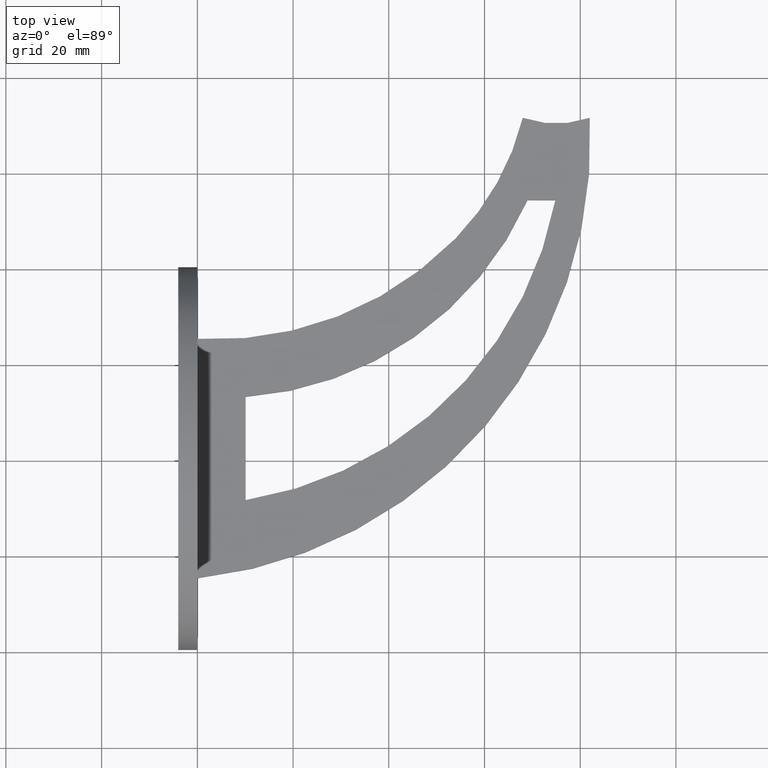
[diagram: clean part render]
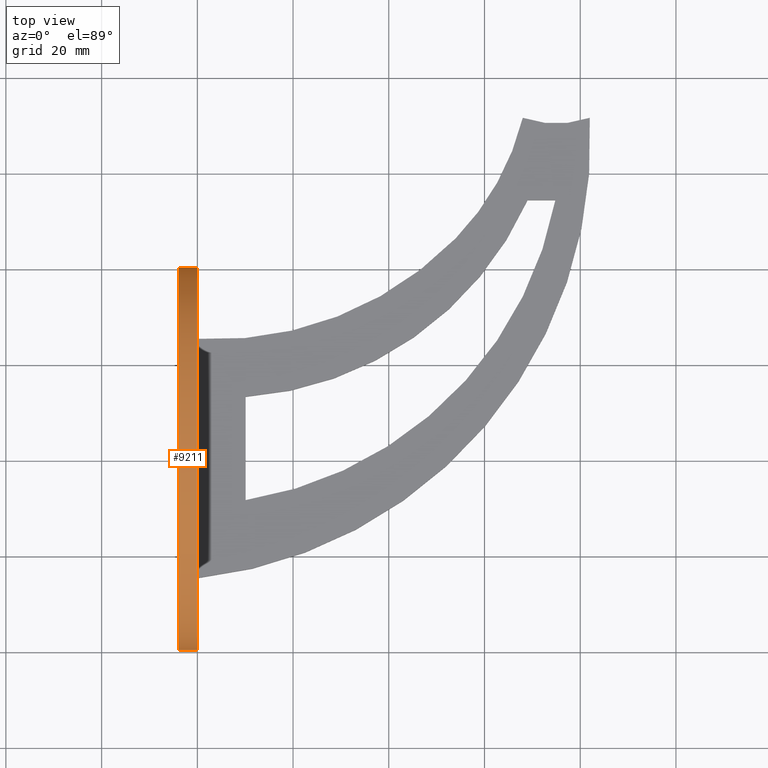
[diagram: same view with one face highlighted and labeled with its STEP entity id]
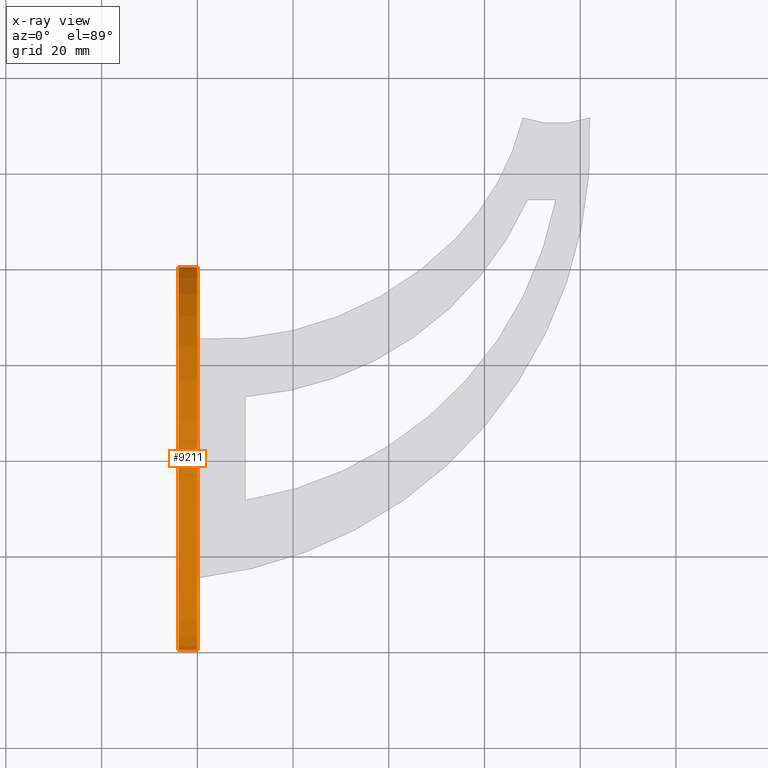
[diagram: x-ray of the same camera — body ghosted, the highlighted face saturated]
A machine part, top view. The second image highlights one B-rep face of the part: STEP entity #9211.
The next image is the same camera in x-ray: the body ghosted, the highlighted face saturated — about 0% of this face is hidden behind the body in this view.
In plain terms, the highlighted face is a freeform B-spline surface patch.
Its self-contained STEP definition (entity closure, byte-faithful):
#258 = ORIENTED_EDGE ( 'NONE', *, *, #6277, .F. ) ;
#262 = CARTESIAN_POINT ( 'NONE',  ( -4.000000000003197442, -39.99999999999973710, -3.673940397442059178E-15 ) ) ;
#508 = FACE_OUTER_BOUND ( 'NONE', #5699, .T. ) ;
#555 = CARTESIAN_POINT ( 'NONE',  ( -3.197312206659752172E-12, -40.00000000000005684, 59.99999999999998579 ) ) ;
#821 = ORIENTED_EDGE ( 'NONE', *, *, #11637, .T. ) ;
#954 = VERTEX_POINT ( 'NONE', #4424 ) ;
#1369 = EDGE_CURVE ( 'NONE', #5265, #11508, #9267, .T. ) ;
#1912 = CARTESIAN_POINT ( 'NONE',  ( -4.000000000003197442, -39.99999999999973710, -3.673940397442059178E-15 ) ) ;
#2052 = VERTEX_POINT ( 'NONE', #9369 ) ;
#2991 =( BOUNDED_CURVE ( )  B_SPLINE_CURVE ( 3, ( #6125, #10563, #9661, #4176 ),
 .UNSPECIFIED., .F., .T. ) 
 B_SPLINE_CURVE_WITH_KNOTS ( ( 4, 4 ),
 ( 3.141592653589793116, 6.283185307179586232 ),
 .UNSPECIFIED. ) 
 CURVE ( )  GEOMETRIC_REPRESENTATION_ITEM ( )  RATIONAL_B_SPLINE_CURVE ( ( 1.000000000000000000, 0.3333333333333333703, 0.3333333333333333703, 1.000000000000000000 ) ) 
 REPRESENTATION_ITEM ( '' )  );
#3131 = CARTESIAN_POINT ( 'NONE',  ( -4.000000000003197442, -39.99999999999974420, 59.99999999999998579 ) ) ;
#3550 = ORIENTED_EDGE ( 'NONE', *, *, #1369, .F. ) ;
#3637 = CARTESIAN_POINT ( 'NONE',  ( -3.999999999996803446, 40.00000000000037659, 60.00000000000000711 ) ) ;
#3843 = DIRECTION ( 'NONE',  ( 1.000000000000000000, -7.993605777301128353E-14, -0.000000000000000000 ) ) ;
#3950 = ORIENTED_EDGE ( 'NONE', *, *, #7179, .T. ) ;
#4176 = CARTESIAN_POINT ( 'NONE',  ( 3.197442310920455683E-12, 40.00000000000005684, 0.000000000000000000 ) ) ;
#4226 = CARTESIAN_POINT ( 'NONE',  ( -3.999999999996803002, 40.00000000000037659, 0.000000000000000000 ) ) ;
#4424 = CARTESIAN_POINT ( 'NONE',  ( -3.197442310920455683E-12, -40.00000000000005684, -3.673940397442059178E-15 ) ) ;
#5075 =( BOUNDED_SURFACE ( )  B_SPLINE_SURFACE ( 3, 1, ( 
 ( #262, #7694 ),
 ( #3131, #555 ),
 ( #10422, #8590 ),
 ( #8675, #9451 ) ),
 .UNSPECIFIED., .F., .F., .F. ) 
 B_SPLINE_SURFACE_WITH_KNOTS ( ( 4, 4 ),
 ( 2, 2 ),
 ( 0.000000000000000000, 1.000000000000000000 ),
 ( 0.000000000000000000, 1.000000000000000000 ),
 .UNSPECIFIED. ) 
 GEOMETRIC_REPRESENTATION_ITEM ( )  RATIONAL_B_SPLINE_SURFACE ( (
 ( 1.000000000000000000, 1.000000000000000000),
 ( 0.3333333333333333703, 0.3333333333333333703),
 ( 0.3333333333333333703, 0.3333333333333333703),
 ( 1.000000000000000000, 1.000000000000000000) ) ) 
 REPRESENTATION_ITEM ( '' )  SURFACE ( )  );
#5265 = VERTEX_POINT ( 'NONE', #7078 ) ;
#5469 = CARTESIAN_POINT ( 'NONE',  ( -4.000000000003197442, -39.99999999999974420, 59.99999999999998579 ) ) ;
#5499 = LINE ( 'NONE', #9228, #10598 ) ;
#5699 = EDGE_LOOP ( 'NONE', ( #3550, #821, #3950, #258 ) ) ;
#6125 = CARTESIAN_POINT ( 'NONE',  ( -3.197442310920455683E-12, -40.00000000000005684, -3.673940397442059178E-15 ) ) ;
#6210 = CARTESIAN_POINT ( 'NONE',  ( -3.999999999996803002, 40.00000000000037659, 0.000000000000000000 ) ) ;
#6277 = EDGE_CURVE ( 'NONE', #11508, #2052, #5499, .T. ) ;
#7078 = CARTESIAN_POINT ( 'NONE',  ( -4.000000000003197442, -39.99999999999973710, -3.673940397442059178E-15 ) ) ;
#7179 = EDGE_CURVE ( 'NONE', #954, #2052, #2991, .T. ) ;
#7234 = CARTESIAN_POINT ( 'NONE',  ( -4.000000000003197442, -39.99999999999973710, -3.673940397442059178E-15 ) ) ;
#7274 = DIRECTION ( 'NONE',  ( 1.000000000000000000, -7.993605777301128353E-14, -0.000000000000000000 ) ) ;
#7694 = CARTESIAN_POINT ( 'NONE',  ( -3.197095366225255475E-12, -40.00000000000005684, -3.673940397442059178E-15 ) ) ;
#8472 = LINE ( 'NONE', #7234, #9166 ) ;
#8590 = CARTESIAN_POINT ( 'NONE',  ( 3.197312206659752172E-12, 40.00000000000005684, 59.99999999999999289 ) ) ;
#8675 = CARTESIAN_POINT ( 'NONE',  ( -3.999999999996803002, 40.00000000000037659, 0.000000000000000000 ) ) ;
#9166 = VECTOR ( 'NONE', #7274, 1000.000000000000000 ) ;
#9211 = ADVANCED_FACE ( 'NONE', ( #508 ), #5075, .F. ) ;
#9228 = CARTESIAN_POINT ( 'NONE',  ( -3.999999999996803002, 40.00000000000037659, 0.000000000000000000 ) ) ;
#9267 =( BOUNDED_CURVE ( )  B_SPLINE_CURVE ( 3, ( #1912, #5469, #3637, #6210 ),
 .UNSPECIFIED., .F., .F. ) 
 B_SPLINE_CURVE_WITH_KNOTS ( ( 4, 4 ),
 ( 3.141592653589793116, 6.283185307179586232 ),
 .UNSPECIFIED. ) 
 CURVE ( )  GEOMETRIC_REPRESENTATION_ITEM ( )  RATIONAL_B_SPLINE_CURVE ( ( 1.000000000000000000, 0.3333333333333333703, 0.3333333333333333703, 1.000000000000000000 ) ) 
 REPRESENTATION_ITEM ( '' )  );
#9369 = CARTESIAN_POINT ( 'NONE',  ( 3.197442310920455683E-12, 40.00000000000005684, 0.000000000000000000 ) ) ;
#9451 = CARTESIAN_POINT ( 'NONE',  ( 3.197095366225255475E-12, 40.00000000000005684, 0.000000000000000000 ) ) ;
#9661 = CARTESIAN_POINT ( 'NONE',  ( 3.197442310920456087E-12, 40.00000000000005684, 60.00000000000000711 ) ) ;
#10422 = CARTESIAN_POINT ( 'NONE',  ( -3.999999999996802558, 40.00000000000037659, 59.99999999999999289 ) ) ;
#10563 = CARTESIAN_POINT ( 'NONE',  ( -3.197442310920456491E-12, -40.00000000000006395, 59.99999999999998579 ) ) ;
#10598 = VECTOR ( 'NONE', #3843, 1000.000000000000000 ) ;
#11508 = VERTEX_POINT ( 'NONE', #4226 ) ;
#11637 = EDGE_CURVE ( 'NONE', #5265, #954, #8472, .T. ) ;